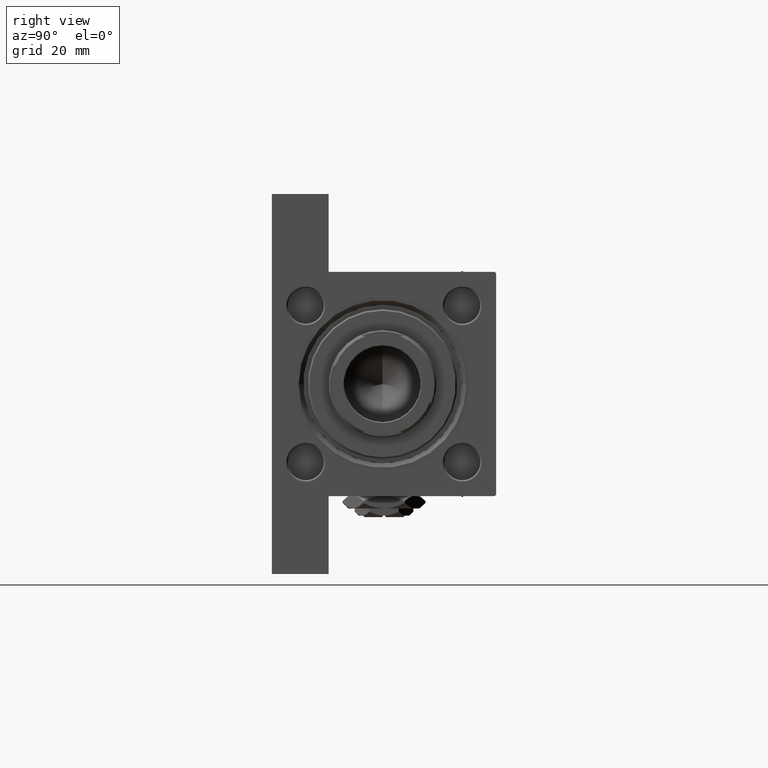
[diagram: clean part render]
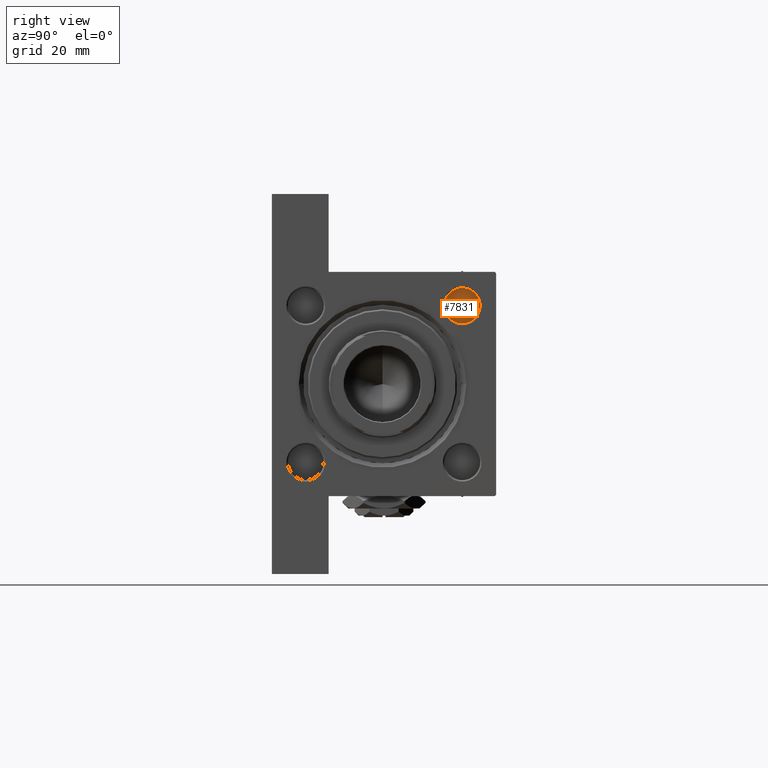
[diagram: same view with one face highlighted and labeled with its STEP entity id]
A machine part, right view. The second image highlights one B-rep face of the part: STEP entity #7831.
In plain terms, the highlighted planar face has unit normal (1, 0, 0).
Its self-contained STEP definition (entity closure, byte-faithful):
#2593 = ORIENTED_EDGE ( 'NONE', *, *, #37143, .T. ) ;
#3724 = EDGE_CURVE ( 'NONE', #20079, #22932, #11782, .T. ) ;
#4018 = CARTESIAN_POINT ( 'NONE',  ( 142.0000000000000000, -26.14999999999999147, 32.15000000000000568 ) ) ;
#4558 = DIRECTION ( 'NONE',  ( 0.000000000000000000, 0.000000000000000000, -1.000000000000000000 ) ) ;
#5631 = AXIS2_PLACEMENT_3D ( 'NONE', #16341, #38981, #4558 ) ;
#7831 = ADVANCED_FACE ( 'NONE', ( #44627 ), #33824, .T. ) ;
#11782 = CIRCLE ( 'NONE', #39889, 6.000000000000008882 ) ;
#16341 = CARTESIAN_POINT ( 'NONE',  ( 142.0000000000000000, -26.14999999999999147, 26.14999999999999503 ) ) ;
#17483 = DIRECTION ( 'NONE',  ( 0.000000000000000000, 0.000000000000000000, -1.000000000000000000 ) ) ;
#20079 = VERTEX_POINT ( 'NONE', #4018 ) ;
#22932 = VERTEX_POINT ( 'NONE', #41782 ) ;
#26654 = DIRECTION ( 'NONE',  ( 1.000000000000000000, 0.000000000000000000, 0.000000000000000000 ) ) ;
#32704 = AXIS2_PLACEMENT_3D ( 'NONE', #41346, #49145, #17483 ) ;
#33824 = PLANE ( 'NONE',  #32704 ) ;
#37143 = EDGE_CURVE ( 'NONE', #22932, #20079, #39367, .T. ) ;
#37332 = EDGE_LOOP ( 'NONE', ( #2593, #39338 ) ) ;
#38735 = DIRECTION ( 'NONE',  ( 0.000000000000000000, 0.000000000000000000, -1.000000000000000000 ) ) ;
#38981 = DIRECTION ( 'NONE',  ( 1.000000000000000000, 0.000000000000000000, 0.000000000000000000 ) ) ;
#39338 = ORIENTED_EDGE ( 'NONE', *, *, #3724, .T. ) ;
#39367 = CIRCLE ( 'NONE', #5631, 6.000000000000008882 ) ;
#39889 = AXIS2_PLACEMENT_3D ( 'NONE', #45765, #26654, #38735 ) ;
#41346 = CARTESIAN_POINT ( 'NONE',  ( 142.0000000000000000, -26.14999999999999147, 26.14999999999999503 ) ) ;
#41782 = CARTESIAN_POINT ( 'NONE',  ( 142.0000000000000000, -26.14999999999999147, 20.14999999999998792 ) ) ;
#44627 = FACE_OUTER_BOUND ( 'NONE', #37332, .T. ) ;
#45765 = CARTESIAN_POINT ( 'NONE',  ( 142.0000000000000000, -26.14999999999999147, 26.14999999999999503 ) ) ;
#49145 = DIRECTION ( 'NONE',  ( 1.000000000000000000, 0.000000000000000000, 0.000000000000000000 ) ) ;